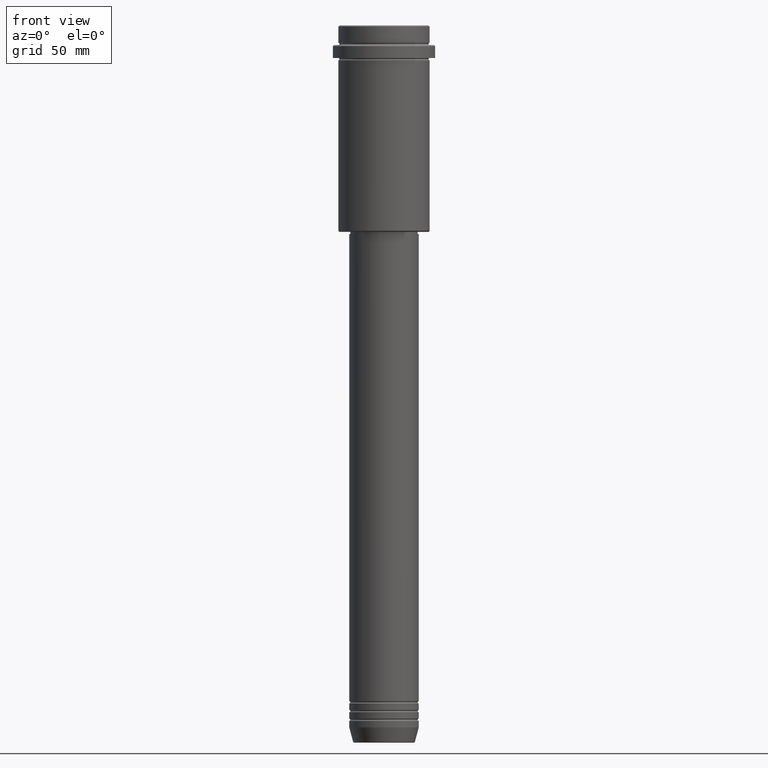
[diagram: clean part render]
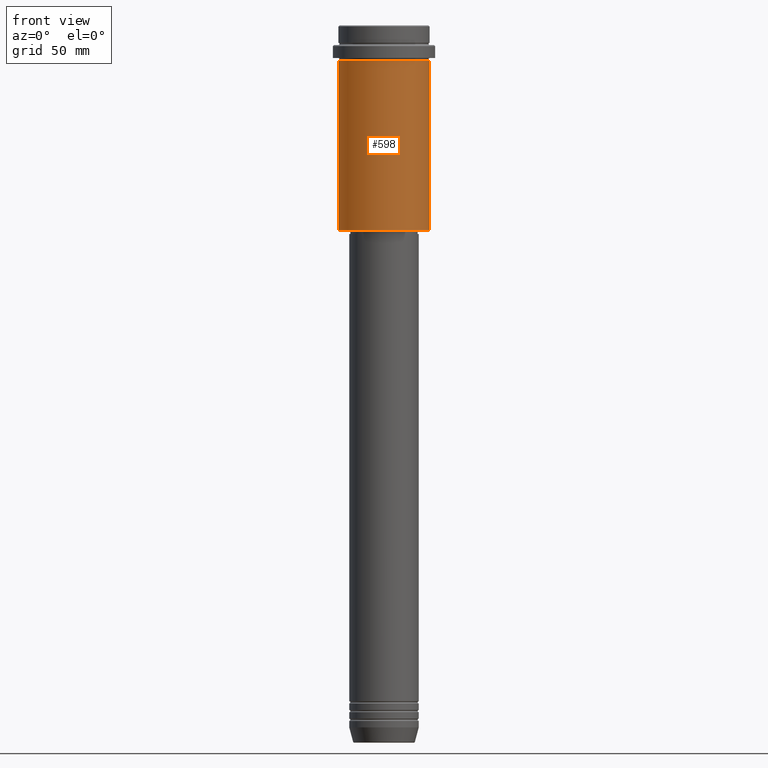
[diagram: same view with one face highlighted and labeled with its STEP entity id]
A machine part, front view. The second image highlights one B-rep face of the part: STEP entity #598.
In plain terms, the highlighted cylindrical surface (partial cylindrical patch) has radius 21 mm, axis along (-0, -0, 1).
Its self-contained STEP definition (entity closure, byte-faithful):
#103 = DIRECTION ( 'NONE',  ( 1.000000000000000000, 0.000000000000000000, 0.000000000000000000 ) ) ;
#108 = CYLINDRICAL_SURFACE ( 'NONE', #344, 20.99999999999999645 ) ;
#231 = CIRCLE ( 'NONE', #405, 20.99999999999999645 ) ;
#292 = CARTESIAN_POINT ( 'NONE',  ( 20.99999999999999645, 0.000000000000000000, -16.00000000000000355 ) ) ;
#311 = CARTESIAN_POINT ( 'NONE',  ( 20.99999999999999645, 0.000000000000000000, -94.49999999999995737 ) ) ;
#328 = EDGE_CURVE ( 'NONE', #1414, #695, #913, .T. ) ;
#344 = AXIS2_PLACEMENT_3D ( 'NONE', #1183, #859, #1190 ) ;
#348 = VERTEX_POINT ( 'NONE', #292 ) ;
#393 = CARTESIAN_POINT ( 'NONE',  ( -20.99999999999999645, 2.571758278209441267E-15, -94.49999999999995737 ) ) ;
#405 = AXIS2_PLACEMENT_3D ( 'NONE', #641, #532, #437 ) ;
#406 = ORIENTED_EDGE ( 'NONE', *, *, #1233, .F. ) ;
#437 = DIRECTION ( 'NONE',  ( -1.000000000000000000, 0.000000000000000000, 0.000000000000000000 ) ) ;
#472 = CARTESIAN_POINT ( 'NONE',  ( 20.99999999999999645, 0.000000000000000000, 0.000000000000000000 ) ) ;
#500 = VECTOR ( 'NONE', #1157, 1000.000000000000000 ) ;
#509 = AXIS2_PLACEMENT_3D ( 'NONE', #1193, #738, #103 ) ;
#532 = DIRECTION ( 'NONE',  ( -0.000000000000000000, -0.000000000000000000, 1.000000000000000000 ) ) ;
#588 = EDGE_CURVE ( 'NONE', #1414, #737, #231, .T. ) ;
#598 = ADVANCED_FACE ( 'NONE', ( #961 ), #108, .T. ) ;
#641 = CARTESIAN_POINT ( 'NONE',  ( 0.000000000000000000, 0.000000000000000000, -94.49999999999995737 ) ) ;
#648 = VECTOR ( 'NONE', #794, 1000.000000000000000 ) ;
#655 = ORIENTED_EDGE ( 'NONE', *, *, #588, .T. ) ;
#695 = VERTEX_POINT ( 'NONE', #740 ) ;
#737 = VERTEX_POINT ( 'NONE', #311 ) ;
#738 = DIRECTION ( 'NONE',  ( -0.000000000000000000, -0.000000000000000000, 1.000000000000000000 ) ) ;
#740 = CARTESIAN_POINT ( 'NONE',  ( -20.99999999999999645, 2.571758278209441267E-15, -16.00000000000000355 ) ) ;
#748 = EDGE_LOOP ( 'NONE', ( #1132, #655, #1372, #406 ) ) ;
#794 = DIRECTION ( 'NONE',  ( -0.000000000000000000, -0.000000000000000000, 1.000000000000000000 ) ) ;
#859 = DIRECTION ( 'NONE',  ( -0.000000000000000000, -0.000000000000000000, 1.000000000000000000 ) ) ;
#913 = LINE ( 'NONE', #932, #500 ) ;
#932 = CARTESIAN_POINT ( 'NONE',  ( -20.99999999999999645, 2.571758278209441267E-15, 0.000000000000000000 ) ) ;
#933 = EDGE_CURVE ( 'NONE', #737, #348, #1247, .T. ) ;
#961 = FACE_OUTER_BOUND ( 'NONE', #748, .T. ) ;
#991 = CIRCLE ( 'NONE', #509, 20.99999999999999645 ) ;
#1132 = ORIENTED_EDGE ( 'NONE', *, *, #328, .F. ) ;
#1157 = DIRECTION ( 'NONE',  ( -0.000000000000000000, -0.000000000000000000, 1.000000000000000000 ) ) ;
#1183 = CARTESIAN_POINT ( 'NONE',  ( 0.000000000000000000, 0.000000000000000000, 0.000000000000000000 ) ) ;
#1190 = DIRECTION ( 'NONE',  ( 1.000000000000000000, 0.000000000000000000, 0.000000000000000000 ) ) ;
#1193 = CARTESIAN_POINT ( 'NONE',  ( 0.000000000000000000, 0.000000000000000000, -16.00000000000000355 ) ) ;
#1233 = EDGE_CURVE ( 'NONE', #695, #348, #991, .T. ) ;
#1247 = LINE ( 'NONE', #472, #648 ) ;
#1372 = ORIENTED_EDGE ( 'NONE', *, *, #933, .T. ) ;
#1414 = VERTEX_POINT ( 'NONE', #393 ) ;